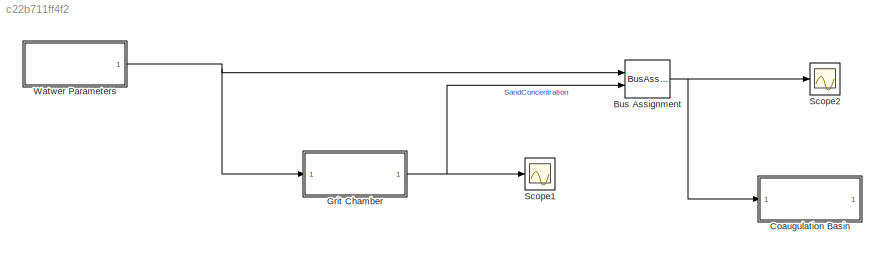
MODEL slx_c22b711ff4f2
KIND model
CONFIG AbsTol = auto
CONFIG FixedStep = auto
CONFIG MaxStep = auto
CONFIG MinStep = auto
CONFIG RelTol = 1e-3
CONFIG SampleTimeConstraint = Unconstrained
CONFIG Solver = VariableStepAuto
CONFIG SolverMode = Auto
CONFIG SolverName = VariableStepAuto
CONFIG StartTime = 0.0
CONFIG StopTime = 10.0
WORKSPACE source: MAT-file member
WORKSPACE C0 = 1
BLOCK [BusAssignment] Bus Assignment
  AssignedSignals = SandConcentration
  Ports = [2, 1]
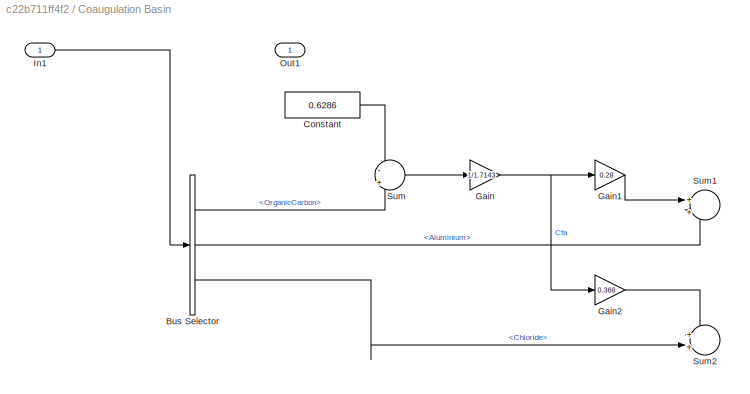
BLOCK [SubSystem] Coaugulation Basin
  Ports = [1, 1]
  RequestExecContextInheritance = off
  Variant = off
BLOCK [BusSelector] Coaugulation Basin/Bus Selector
  OutputSignals = OrganicCarbon,Aluminium,Chloride
  Ports = [1, 3]
BLOCK [Constant] Coaugulation Basin/Constant
  Value = 0.6286
BLOCK [Gain] Coaugulation Basin/Gain
  Gain = 1/1.7143
  OutDataTypeStr = Inherit: Inherit via internal rule
  ParamDataTypeStr = Inherit: Inherit via internal rule
  SaturateOnIntegerOverflow = off
BLOCK [Gain] Coaugulation Basin/Gain1
  Gain = 0.28
  OutDataTypeStr = Inherit: Inherit via internal rule
  ParamDataTypeStr = Inherit: Inherit via internal rule
  SaturateOnIntegerOverflow = off
BLOCK [Gain] Coaugulation Basin/Gain2
  Gain = 0.368
  OutDataTypeStr = Inherit: Inherit via internal rule
  ParamDataTypeStr = Inherit: Inherit via internal rule
  SaturateOnIntegerOverflow = off
BLOCK [Inport] Coaugulation Basin/In1
  IconDisplay = Port number
BLOCK [Outport] Coaugulation Basin/Out1
  IconDisplay = Port number
BLOCK [Sum] Coaugulation Basin/Sum
  IconShape = round
  InputSameDT = off
  Inputs = -|+
  OutDataTypeStr = Inherit: Inherit via internal rule
  Ports = [2, 1]
  SaturateOnIntegerOverflow = off
BLOCK [Sum] Coaugulation Basin/Sum1
  IconShape = round
  InputSameDT = off
  Inputs = +|+
  OutDataTypeStr = Inherit: Inherit via internal rule
  Ports = [2, 1]
  SaturateOnIntegerOverflow = off
BLOCK [Sum] Coaugulation Basin/Sum2
  IconShape = round
  InputSameDT = off
  Inputs = +|+
  OutDataTypeStr = Inherit: Inherit via internal rule
  Ports = [2, 1]
  SaturateOnIntegerOverflow = off
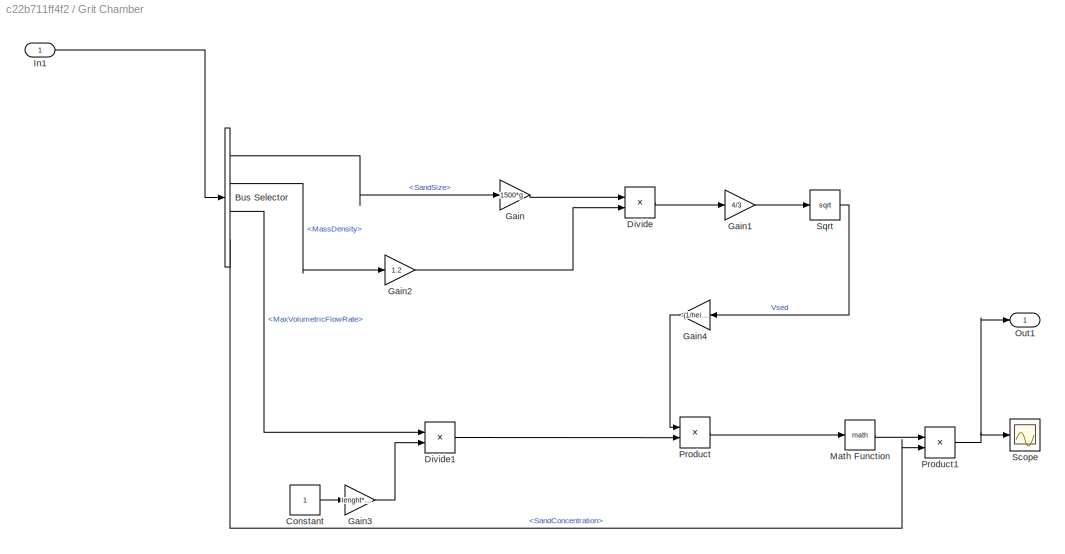
BLOCK [SubSystem] Grit Chamber
  Ports = [1, 1]
  RequestExecContextInheritance = off
  Variant = off
BLOCK [BusSelector] Grit Chamber/Bus Selector
  OutputSignals = SandSize,MassDensity,MaxVolumetricFlowRate,SandConcentration
  Ports = [1, 4]
BLOCK [Constant] Grit Chamber/Constant
BLOCK [Product] Grit Chamber/Divide
  InputSameDT = off
  Inputs = */
  OutDataTypeStr = Inherit: Inherit via internal rule
  Ports = [2, 1]
  RndMeth = Floor
  SaturateOnIntegerOverflow = off
BLOCK [Product] Grit Chamber/Divide1
  InputSameDT = off
  Inputs = */
  OutDataTypeStr = Inherit: Inherit via internal rule
  Ports = [2, 1]
  RndMeth = Floor
  SaturateOnIntegerOverflow = off
BLOCK [Gain] Grit Chamber/Gain
  Gain = 1500*g
  OutDataTypeStr = Inherit: Inherit via internal rule
  ParamDataTypeStr = Inherit: Inherit via internal rule
  SaturateOnIntegerOverflow = off
BLOCK [Gain] Grit Chamber/Gain1
  Gain = 4/3
  OutDataTypeStr = Inherit: Inherit via internal rule
  ParamDataTypeStr = Inherit: Inherit via internal rule
  SaturateOnIntegerOverflow = off
BLOCK [Gain] Grit Chamber/Gain2
  Gain = 1.2
  OutDataTypeStr = Inherit: Inherit via internal rule
  ParamDataTypeStr = Inherit: Inherit via internal rule
  SaturateOnIntegerOverflow = off
BLOCK [Gain] Grit Chamber/Gain3
  Gain = lenght*width*height
  OutDataTypeStr = Inherit: Inherit via internal rule
  ParamDataTypeStr = Inherit: Inherit via internal rule
  SaturateOnIntegerOverflow = off
BLOCK [Gain] Grit Chamber/Gain4
  Gain = -(1/height)
  OutDataTypeStr = Inherit: Inherit via internal rule
  ParamDataTypeStr = Inherit: Inherit via internal rule
  SaturateOnIntegerOverflow = off
BLOCK [Inport] Grit Chamber/In1
  IconDisplay = Port number
BLOCK [Math] Grit Chamber/Math Function
  Ports = [1, 1]
BLOCK [Outport] Grit Chamber/Out1
  IconDisplay = Port number
BLOCK [Product] Grit Chamber/Product
  InputSameDT = off
  OutDataTypeStr = Inherit: Inherit via internal rule
  Ports = [2, 1]
  RndMeth = Floor
  SaturateOnIntegerOverflow = off
BLOCK [Product] Grit Chamber/Product1
  InputSameDT = off
  OutDataTypeStr = Inherit: Inherit via internal rule
  Ports = [2, 1]
  RndMeth = Floor
  SaturateOnIntegerOverflow = off
BLOCK [Scope] Grit Chamber/Scope
  Ports = [1]
  ScopeSpecificationString = Simulink.scopes.TimeScopeBlockCfg('CurrentConfiguration', extmgr.ConfigurationSet(extmgr.Configuration('Core','General UI',true),extmgr.Configuration('Core','Source UI',true),extmgr.Configuration('Sources','WiredSimulink',true,'DataLoggingVariableName','ScopeData1'),extmgr.Configuration('Visuals','Time Domain',true,'SerializedDisplays',{struct('MinYLimReal','297.29885','MaxYLimReal','497.29885','Y...<+1381ch>
BLOCK [Sqrt] Grit Chamber/Sqrt
BLOCK [Scope] Scope1
  Ports = [1]
  ScopeSpecificationString = Simulink.scopes.TimeScopeBlockCfg('CurrentConfiguration', extmgr.ConfigurationSet(extmgr.Configuration('Core','General UI',true),extmgr.Configuration('Core','Source UI',true),extmgr.Configuration('Sources','WiredSimulink',true,'DataLoggingVariableName','ScopeData2'),extmgr.Configuration('Visuals','Time Domain',true,'SerializedDisplays',{struct('MinYLimReal','-126.24977','MaxYLimReal','1136.24997',...<+1665ch>
BLOCK [Scope] Scope2
  Ports = [1]
  ScopeSpecificationString = Simulink.scopes.TimeScopeBlockCfg('CurrentConfiguration', extmgr.ConfigurationSet(extmgr.Configuration('Core','General UI',true),extmgr.Configuration('Core','Source UI',true),extmgr.Configuration('Sources','WiredSimulink',true),extmgr.Configuration('Visuals','Time Domain',true,'SerializedDisplays',{struct('MinYLimReal','-126.24977','MaxYLimReal','1136.24997','YLabelReal','','MinYLimMag',' 0.00000'...<+1587ch>
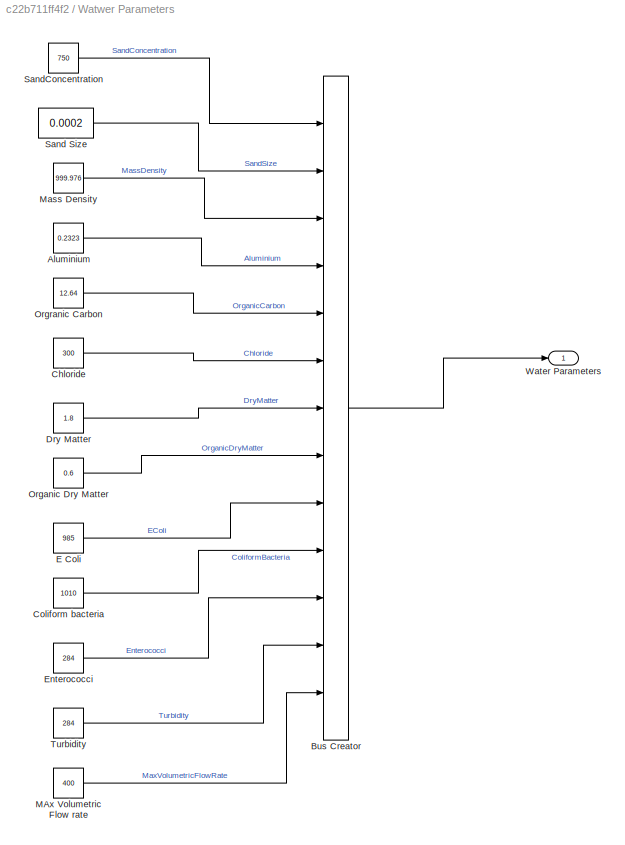
BLOCK [SubSystem] Watwer Parameters
  Ports = [0, 1]
  RequestExecContextInheritance = off
  Variant = off
BLOCK [Constant] Watwer Parameters/Aluminium 
  Value = 0.2323
BLOCK [BusCreator] Watwer Parameters/Bus Creator
  DisplayOption = bar
  InheritFromInputs = on
  Inputs = 'SandConcentration','SandSize','MassDensity','Aluminium','OrganicCarbon','Chloride','DryMatter','OrganicDryMatter','EColi','ColiformBacteria','Enterococci','Turbidity','MaxVolumetricFlowRate'
  Ports = [13, 1]
BLOCK [Constant] Watwer Parameters/Chloride
  Value = 300
BLOCK [Constant] Watwer Parameters/Coliform bacteria
  Value = 1010
BLOCK [Constant] Watwer Parameters/Dry Matter
  Value = 1.8
BLOCK [Constant] Watwer Parameters/E Coli 
  Value = 985
BLOCK [Constant] Watwer Parameters/Enterococci 
  Value = 284
BLOCK [Constant] Watwer Parameters/MAx Volumetric Flow rate
  Value = 400
BLOCK [Constant] Watwer Parameters/Mass Density
  Value = 999.976
BLOCK [Constant] Watwer Parameters/Organic Dry Matter
  Value = 0.6
BLOCK [Constant] Watwer Parameters/Orgranic Carbon 
  Value = 12.64
BLOCK [Constant] Watwer Parameters/Sand Size
  Value = 0.0002
BLOCK [Constant] Watwer Parameters/SandConcentration
  Value = 750
BLOCK [Constant] Watwer Parameters/Turbidity
  Value = 284
BLOCK [Outport] Watwer Parameters/Water Parameters
  IconDisplay = Port number
NET Bus Assignment:1 -> Coaugulation Basin:1, Scope2:1
LINE Coaugulation Basin/Bus Selector:1 -> Coaugulation Basin/Sum:2
LINE Coaugulation Basin/Bus Selector:2 -> Coaugulation Basin/Sum1:2
LINE Coaugulation Basin/Bus Selector:3 -> Coaugulation Basin/Sum2:2
LINE Coaugulation Basin/Constant:1 -> Coaugulation Basin/Sum:1
LINE Coaugulation Basin/Gain1:1 -> Coaugulation Basin/Sum1:1
LINE Coaugulation Basin/Gain2:1 -> Coaugulation Basin/Sum2:1
NET Coaugulation Basin/Gain:1 -> Coaugulation Basin/Gain1:1, Coaugulation Basin/Gain2:1
LINE Coaugulation Basin/In1:1 -> Coaugulation Basin/Bus Selector:1
LINE Coaugulation Basin/Sum:1 -> Coaugulation Basin/Gain:1
LINE Grit Chamber/Bus Selector:1 -> Grit Chamber/Gain:1
LINE Grit Chamber/Bus Selector:2 -> Grit Chamber/Gain2:1
LINE Grit Chamber/Bus Selector:3 -> Grit Chamber/Divide1:1
LINE Grit Chamber/Bus Selector:4 -> Grit Chamber/Product1:2
LINE Grit Chamber/Constant:1 -> Grit Chamber/Gain3:1
LINE Grit Chamber/Divide1:1 -> Grit Chamber/Product:2
LINE Grit Chamber/Divide:1 -> Grit Chamber/Gain1:1
LINE Grit Chamber/Gain1:1 -> Grit Chamber/Sqrt:1
LINE Grit Chamber/Gain2:1 -> Grit Chamber/Divide:2
LINE Grit Chamber/Gain3:1 -> Grit Chamber/Divide1:2
LINE Grit Chamber/Gain4:1 -> Grit Chamber/Product:1
LINE Grit Chamber/Gain:1 -> Grit Chamber/Divide:1
LINE Grit Chamber/In1:1 -> Grit Chamber/Bus Selector:1
LINE Grit Chamber/Math Function:1 -> Grit Chamber/Product1:1
NET Grit Chamber/Product1:1 -> Grit Chamber/Out1:1, Grit Chamber/Scope:1
LINE Grit Chamber/Product:1 -> Grit Chamber/Math Function:1
LINE Grit Chamber/Sqrt:1 -> Grit Chamber/Gain4:1
NET Grit Chamber:1 -> Bus Assignment:2, Scope1:1
LINE Watwer Parameters/Aluminium :1 -> Watwer Parameters/Bus Creator:4
LINE Watwer Parameters/Bus Creator:1 -> Watwer Parameters/Water Parameters:1
LINE Watwer Parameters/Chloride:1 -> Watwer Parameters/Bus Creator:6
LINE Watwer Parameters/Coliform bacteria:1 -> Watwer Parameters/Bus Creator:10
LINE Watwer Parameters/Dry Matter:1 -> Watwer Parameters/Bus Creator:7
LINE Watwer Parameters/E Coli :1 -> Watwer Parameters/Bus Creator:9
LINE Watwer Parameters/Enterococci :1 -> Watwer Parameters/Bus Creator:11
LINE Watwer Parameters/MAx Volumetric Flow rate:1 -> Watwer Parameters/Bus Creator:13
LINE Watwer Parameters/Mass Density:1 -> Watwer Parameters/Bus Creator:3
LINE Watwer Parameters/Organic Dry Matter:1 -> Watwer Parameters/Bus Creator:8
LINE Watwer Parameters/Orgranic Carbon :1 -> Watwer Parameters/Bus Creator:5
LINE Watwer Parameters/Sand Size:1 -> Watwer Parameters/Bus Creator:2
LINE Watwer Parameters/SandConcentration:1 -> Watwer Parameters/Bus Creator:1
LINE Watwer Parameters/Turbidity:1 -> Watwer Parameters/Bus Creator:12
NET Watwer Parameters:1 -> Bus Assignment:1, Grit Chamber:1
note: NET lines group one-source signal fan-out (src -> all destinations, sorted); 1:1 wires keep LINE
